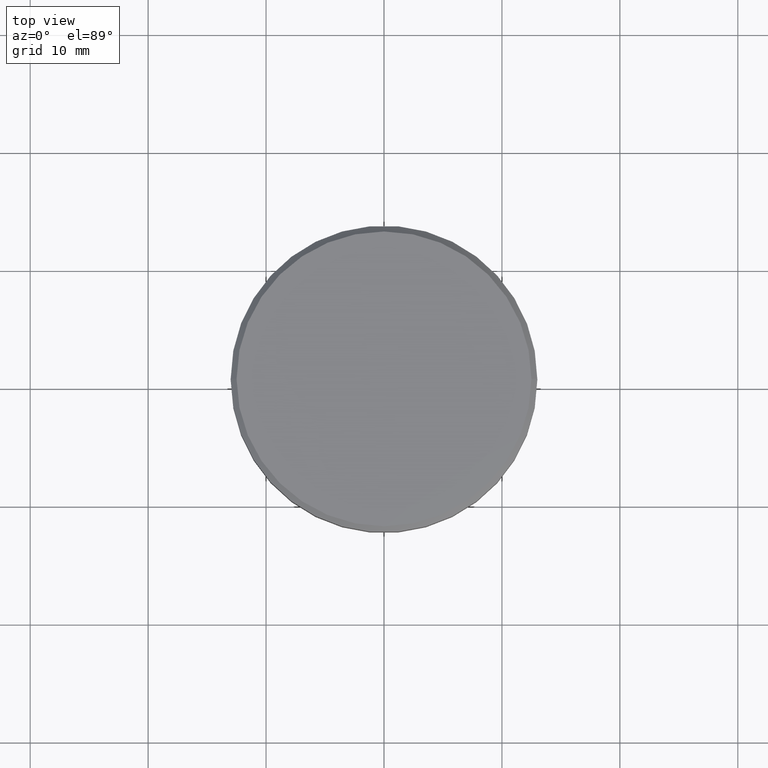
[diagram: clean part render]
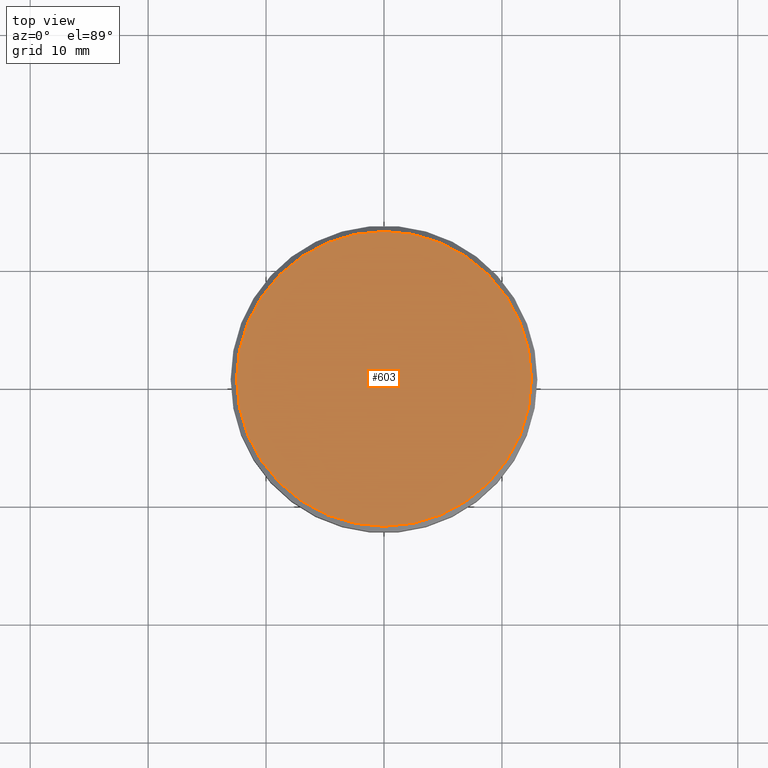
[diagram: same view with one face highlighted and labeled with its STEP entity id]
A machine part, top view. The second image highlights one B-rep face of the part: STEP entity #603.
In plain terms, the highlighted planar face has unit normal (0, -0, 1).
Its self-contained STEP definition (entity closure, byte-faithful):
#168 = ORIENTED_EDGE ( 'NONE', *, *, #635, .T. ) ;
#175 = CARTESIAN_POINT ( 'NONE',  ( 0.000000000000000000, 0.000000000000000000, 0.000000000000000000 ) ) ;
#196 = CIRCLE ( 'NONE', #487, 12.50000000000000355 ) ;
#278 = EDGE_LOOP ( 'NONE', ( #168, #523 ) ) ;
#487 = AXIS2_PLACEMENT_3D ( 'NONE', #175, #1167, #909 ) ;
#523 = ORIENTED_EDGE ( 'NONE', *, *, #1086, .T. ) ;
#543 = CARTESIAN_POINT ( 'NONE',  ( 12.50000000000000355, 1.561424668912875506E-15, 0.000000000000000000 ) ) ;
#550 = CARTESIAN_POINT ( 'NONE',  ( 0.000000000000000000, 0.000000000000000000, 0.000000000000000000 ) ) ;
#603 = ADVANCED_FACE ( 'NONE', ( #865 ), #761, .T. ) ;
#616 = VERTEX_POINT ( 'NONE', #1015 ) ;
#635 = EDGE_CURVE ( 'NONE', #616, #758, #1112, .T. ) ;
#664 = CARTESIAN_POINT ( 'NONE',  ( 0.000000000000000000, 0.000000000000000000, 0.000000000000000000 ) ) ;
#672 = DIRECTION ( 'NONE',  ( 1.000000000000000000, 0.000000000000000000, 0.000000000000000000 ) ) ;
#741 = DIRECTION ( 'NONE',  ( 0.000000000000000000, -0.000000000000000000, 1.000000000000000000 ) ) ;
#758 = VERTEX_POINT ( 'NONE', #543 ) ;
#761 = PLANE ( 'NONE',  #1055 ) ;
#865 = FACE_OUTER_BOUND ( 'NONE', #278, .T. ) ;
#909 = DIRECTION ( 'NONE',  ( 1.000000000000000000, 0.000000000000000000, 0.000000000000000000 ) ) ;
#944 = DIRECTION ( 'NONE',  ( -0.000000000000000000, -0.000000000000000000, 1.000000000000000000 ) ) ;
#1015 = CARTESIAN_POINT ( 'NONE',  ( -12.50000000000000355, 0.000000000000000000, 0.000000000000000000 ) ) ;
#1055 = AXIS2_PLACEMENT_3D ( 'NONE', #664, #741, #1129 ) ;
#1086 = EDGE_CURVE ( 'NONE', #758, #616, #196, .T. ) ;
#1098 = AXIS2_PLACEMENT_3D ( 'NONE', #550, #944, #672 ) ;
#1112 = CIRCLE ( 'NONE', #1098, 12.50000000000000355 ) ;
#1129 = DIRECTION ( 'NONE',  ( 1.000000000000000000, 0.000000000000000000, 0.000000000000000000 ) ) ;
#1167 = DIRECTION ( 'NONE',  ( -0.000000000000000000, -0.000000000000000000, 1.000000000000000000 ) ) ;